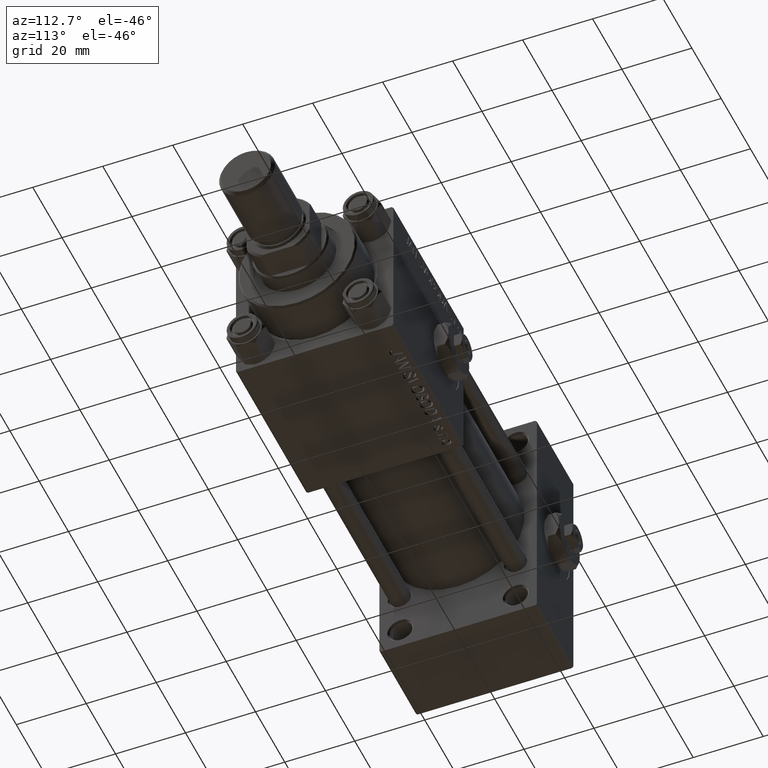
[diagram: clean part render]
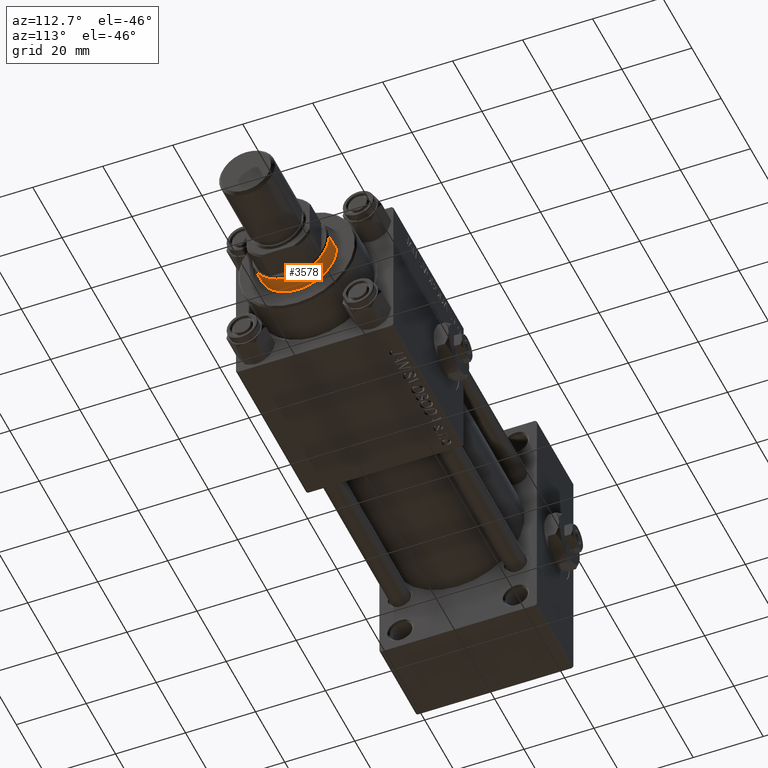
[diagram: same view with one face highlighted and labeled with its STEP entity id]
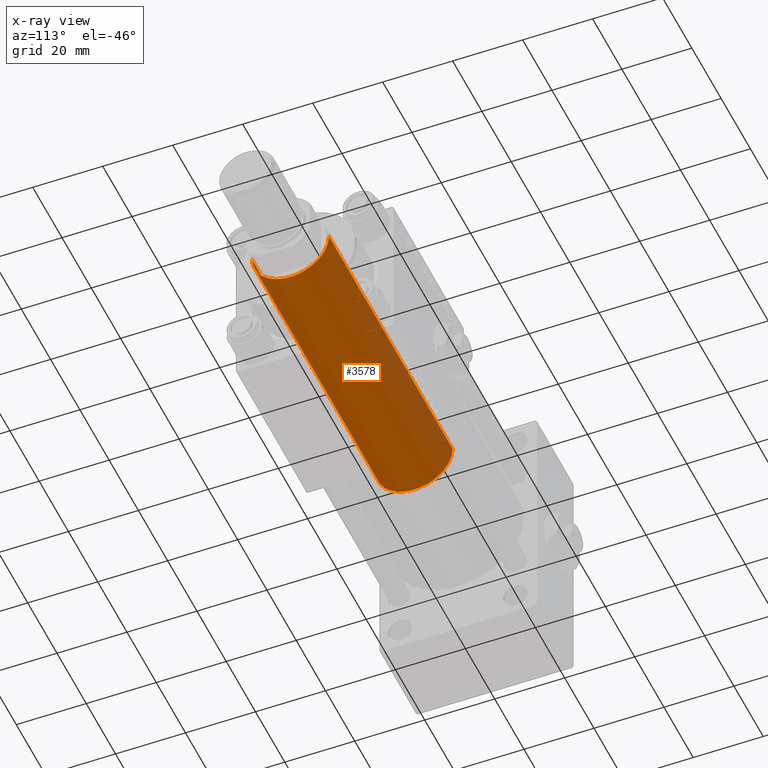
[diagram: x-ray of the same camera — body ghosted, the highlighted face saturated]
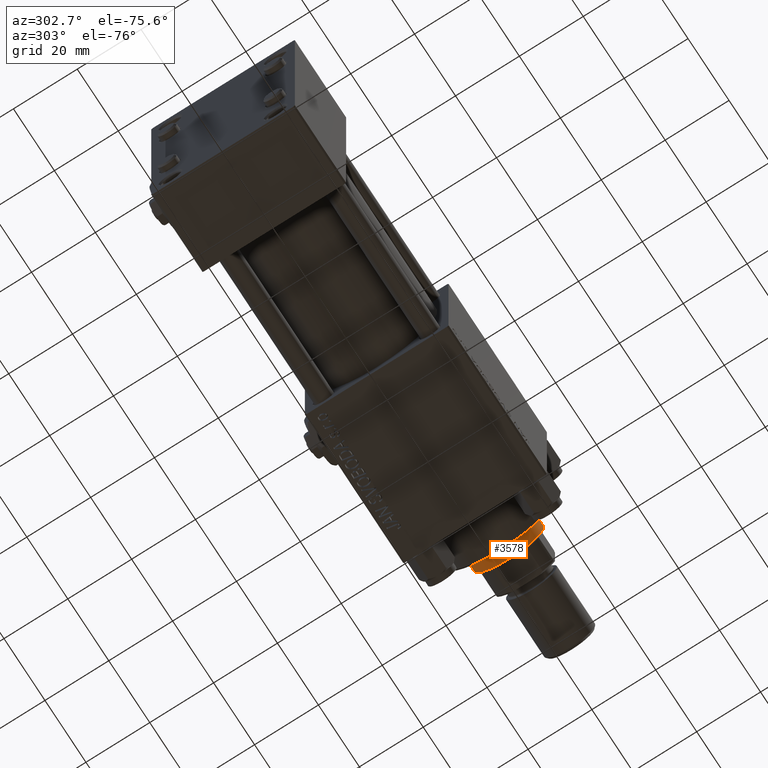
[diagram: same view with one face highlighted and labeled with its STEP entity id]
A machine part, auxiliary view. The second image highlights one B-rep face of the part: STEP entity #3578.
The next image is the same camera in x-ray: the body ghosted, the highlighted face saturated — about 19% of this face is hidden behind the body in this view.
A second angle (auxiliary view) of the same face is appended — the face is thin or edge-on in the first view.
In plain terms, the highlighted cylindrical surface (partial cylindrical patch) has radius 11 mm, axis along (-1, 0, 0).
Its self-contained STEP definition (entity closure, byte-faithful):
#1826 = VERTEX_POINT ( 'NONE', #47200 ) ;
#3387 = DIRECTION ( 'NONE',  ( 1.000000000000000000, 0.000000000000000000, 0.000000000000000000 ) ) ;
#3578 = ADVANCED_FACE ( 'NONE', ( #9992 ), #50552, .T. ) ;
#5589 = LINE ( 'NONE', #37379, #15485 ) ;
#6302 = CARTESIAN_POINT ( 'NONE',  ( 11.00000000000000000, 1.347111479062088405E-15, 114.5000000000000142 ) ) ;
#6447 = EDGE_CURVE ( 'NONE', #29169, #30873, #5589, .T. ) ;
#8065 = DIRECTION ( 'NONE',  ( 0.000000000000000000, 0.000000000000000000, -1.000000000000000000 ) ) ;
#9992 = FACE_OUTER_BOUND ( 'NONE', #29493, .T. ) ;
#10611 = LINE ( 'NONE', #42386, #13125 ) ;
#11363 = DIRECTION ( 'NONE',  ( 0.000000000000000000, 0.000000000000000000, 1.000000000000000000 ) ) ;
#12312 = CARTESIAN_POINT ( 'NONE',  ( 0.000000000000000000, 0.000000000000000000, 114.5000000000000142 ) ) ;
#13125 = VECTOR ( 'NONE', #19322, 1000.000000000000000 ) ;
#15485 = VECTOR ( 'NONE', #17791, 1000.000000000000000 ) ;
#15572 = ORIENTED_EDGE ( 'NONE', *, *, #43113, .T. ) ;
#17140 = DIRECTION ( 'NONE',  ( -0.000000000000000000, -0.000000000000000000, -1.000000000000000000 ) ) ;
#17791 = DIRECTION ( 'NONE',  ( -0.000000000000000000, -0.000000000000000000, -1.000000000000000000 ) ) ;
#18135 = VERTEX_POINT ( 'NONE', #6302 ) ;
#18890 = CIRCLE ( 'NONE', #50188, 11.00000000000000000 ) ;
#19006 = AXIS2_PLACEMENT_3D ( 'NONE', #47675, #11363, #3387 ) ;
#19322 = DIRECTION ( 'NONE',  ( -0.000000000000000000, -0.000000000000000000, -1.000000000000000000 ) ) ;
#21758 = EDGE_CURVE ( 'NONE', #1826, #30873, #51221, .T. ) ;
#21909 = DIRECTION ( 'NONE',  ( -1.000000000000000000, 0.000000000000000000, 0.000000000000000000 ) ) ;
#25614 = CARTESIAN_POINT ( 'NONE',  ( 0.000000000000000000, 0.000000000000000000, 115.0000000000000000 ) ) ;
#28177 = DIRECTION ( 'NONE',  ( 1.000000000000000000, 0.000000000000000000, 0.000000000000000000 ) ) ;
#29045 = ORIENTED_EDGE ( 'NONE', *, *, #21758, .T. ) ;
#29169 = VERTEX_POINT ( 'NONE', #39555 ) ;
#29493 = EDGE_LOOP ( 'NONE', ( #15572, #39826, #29045, #44954 ) ) ;
#30873 = VERTEX_POINT ( 'NONE', #32416 ) ;
#32416 = CARTESIAN_POINT ( 'NONE',  ( -11.00000000000000000, 0.000000000000000000, 30.00000000000000000 ) ) ;
#35690 = AXIS2_PLACEMENT_3D ( 'NONE', #25614, #17140, #21909 ) ;
#37379 = CARTESIAN_POINT ( 'NONE',  ( -11.00000000000000000, 0.000000000000000000, 115.0000000000000000 ) ) ;
#39555 = CARTESIAN_POINT ( 'NONE',  ( -11.00000000000000000, 0.000000000000000000, 114.5000000000000142 ) ) ;
#39826 = ORIENTED_EDGE ( 'NONE', *, *, #50949, .T. ) ;
#42386 = CARTESIAN_POINT ( 'NONE',  ( 11.00000000000000000, 1.347111479062088405E-15, 115.0000000000000000 ) ) ;
#43113 = EDGE_CURVE ( 'NONE', #29169, #18135, #18890, .T. ) ;
#44954 = ORIENTED_EDGE ( 'NONE', *, *, #6447, .F. ) ;
#47200 = CARTESIAN_POINT ( 'NONE',  ( 11.00000000000000000, 1.347111479062088405E-15, 30.00000000000000000 ) ) ;
#47675 = CARTESIAN_POINT ( 'NONE',  ( 0.000000000000000000, 0.000000000000000000, 30.00000000000000000 ) ) ;
#50188 = AXIS2_PLACEMENT_3D ( 'NONE', #12312, #8065, #28177 ) ;
#50552 = CYLINDRICAL_SURFACE ( 'NONE', #35690, 11.00000000000000000 ) ;
#50949 = EDGE_CURVE ( 'NONE', #18135, #1826, #10611, .T. ) ;
#51221 = CIRCLE ( 'NONE', #19006, 11.00000000000000000 ) ;